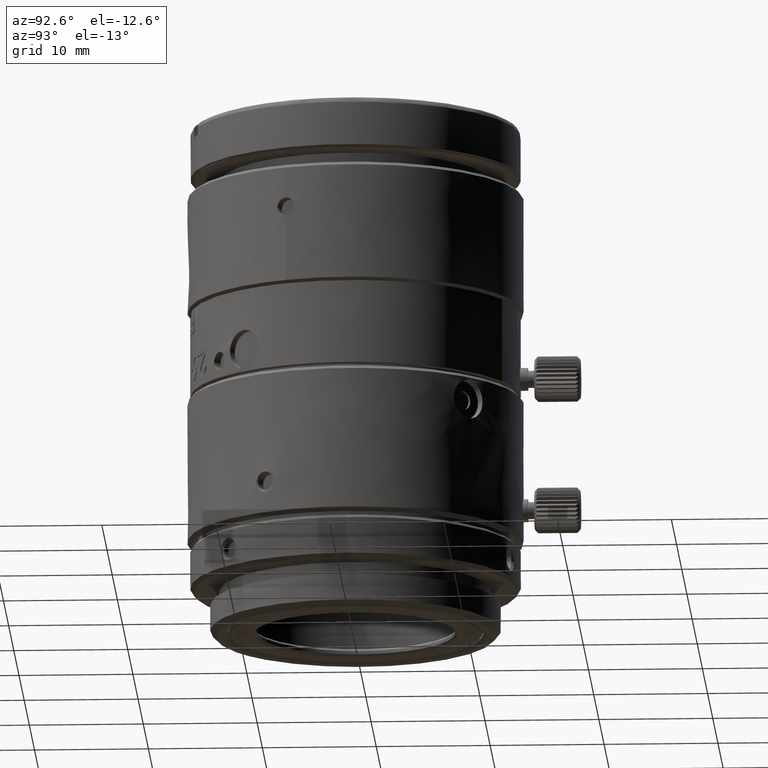
[diagram: clean part render]
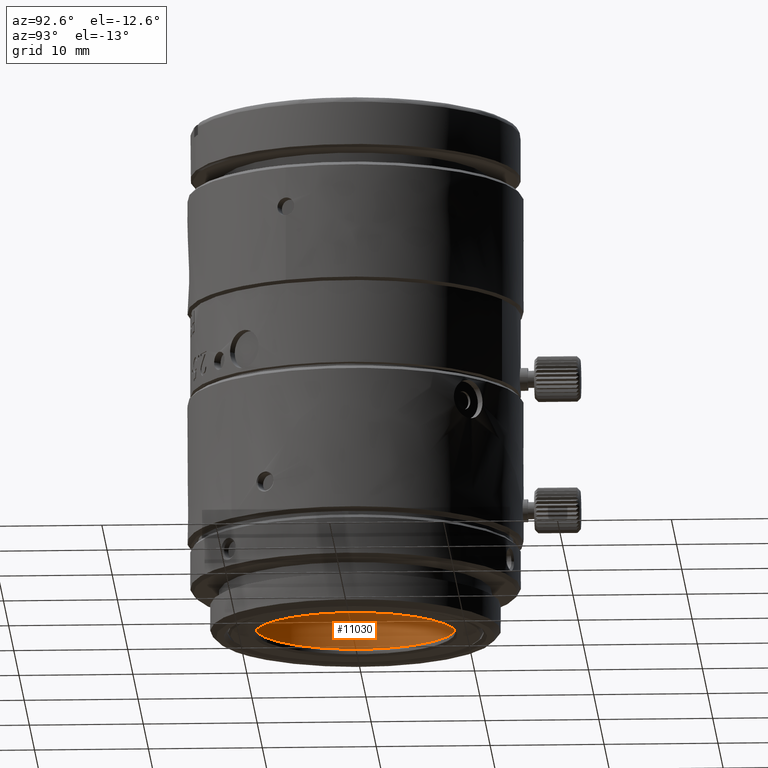
[diagram: same view with one face highlighted and labeled with its STEP entity id]
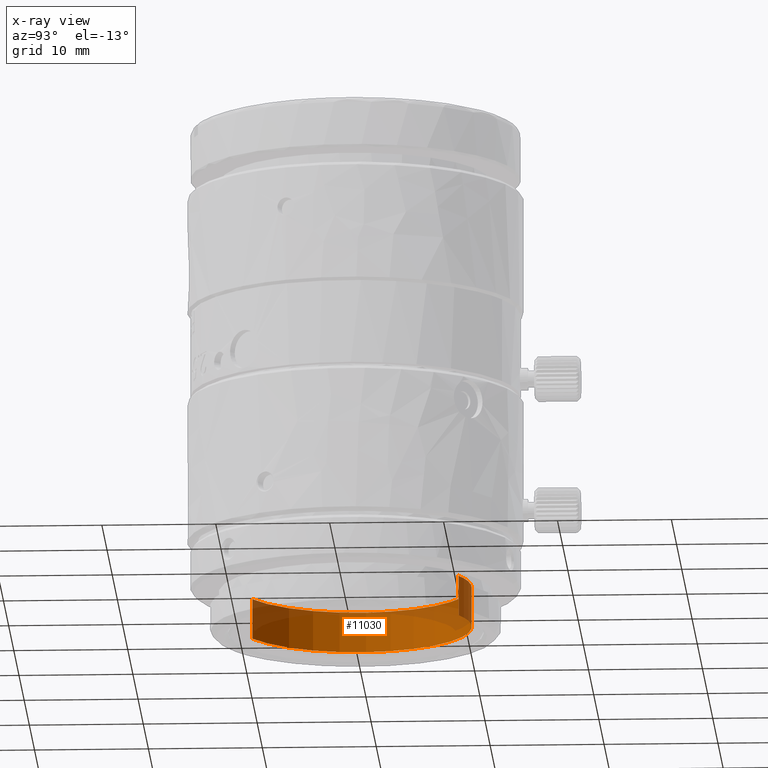
[diagram: x-ray of the same camera — body ghosted, the highlighted face saturated]
A machine part, auxiliary view. The second image highlights one B-rep face of the part: STEP entity #11030.
The next image is the same camera in x-ray: the body ghosted, the highlighted face saturated — about 21% of this face is hidden behind the body in this view.
In plain terms, the highlighted face is a freeform B-spline surface patch.
Its self-contained STEP definition (entity closure, byte-faithful):
#1288 = CARTESIAN_POINT ( 'NONE',  ( 4.310706266680185195, 9.244339427605659409, -19.98400299200000063 ) ) ;
#1475 = CARTESIAN_POINT ( 'NONE',  ( 4.310706268060534363, 9.244339428722421204, -16.43400299219314675 ) ) ;
#1855 =( BOUNDED_CURVE ( )  B_SPLINE_CURVE ( 3, ( #5184, #23028, #26328, #37387 ),
 .UNSPECIFIED., .F., .T. ) 
 B_SPLINE_CURVE_WITH_KNOTS ( ( 4, 4 ),
 ( -4.276056667373720366, -1.134464013783928138 ),
 .UNSPECIFIED. ) 
 CURVE ( )  GEOMETRIC_REPRESENTATION_ITEM ( )  RATIONAL_B_SPLINE_CURVE ( ( 1.000000000000000000, 0.3333333335299311084, 0.3333333335299311084, 1.000000000000000000 ) ) 
 REPRESENTATION_ITEM ( '' )  );
#4773 = CARTESIAN_POINT ( 'NONE',  ( -4.310706269761629628, -9.244339426168760809, -19.98400299200000063 ) ) ;
#5044 = CARTESIAN_POINT ( 'NONE',  ( 4.310706266680185195, 9.244339427605659409, -19.98400299200000063 ) ) ;
#5184 = CARTESIAN_POINT ( 'NONE',  ( -4.310706269761629628, -9.244339426168760809, -19.98400299200000063 ) ) ;
#6853 = CARTESIAN_POINT ( 'NONE',  ( 4.310706266207907866, 9.244339429768283267, -16.43400299199999992 ) ) ;
#9182 =( BOUNDED_SURFACE ( )  B_SPLINE_SURFACE ( 1, 3, ( 
 ( #10347, #30879, #21596, #15409 ),
 ( #6853, #27230, #21410, #33424 ) ),
 .UNSPECIFIED., .F., .F., .T. ) 
 B_SPLINE_SURFACE_WITH_KNOTS ( ( 2, 2 ),
 ( 4, 4 ),
 ( 0.0000000000000000000, 1.000000000000000000 ),
 ( 0.0000000000000000000, 1.000000000000000000 ),
 .UNSPECIFIED. ) 
 GEOMETRIC_REPRESENTATION_ITEM ( )  RATIONAL_B_SPLINE_SURFACE ( (
 ( 1.000000000000000000, 0.3333333334700690487, 0.3333333334700690487, 1.000000000000000000),
 ( 1.000000000000000000, 0.3333333334700690487, 0.3333333334700690487, 1.000000000000000000) ) ) 
 REPRESENTATION_ITEM ( '' )  SURFACE ( )  );
#10347 = CARTESIAN_POINT ( 'NONE',  ( 4.310706266207907866, 9.244339429768283267, -19.98400299200000063 ) ) ;
#11030 = ADVANCED_FACE ( 'NONE', ( #15600 ), #9182, .T. ) ;
#14312 = EDGE_CURVE ( 'NONE', #23100, #27151, #31867, .T. ) ;
#15348 = CARTESIAN_POINT ( 'NONE',  ( -4.310706270371619908, -9.244339427644741036, -16.43400299219314675 ) ) ;
#15409 = CARTESIAN_POINT ( 'NONE',  ( -4.310706270000001616, -9.244339427999999970, -19.98400299200000063 ) ) ;
#15600 = FACE_OUTER_BOUND ( 'NONE', #24845, .T. ) ;
#17624 = VERTEX_POINT ( 'NONE', #5044 ) ;
#18013 = CARTESIAN_POINT ( 'NONE',  ( -4.310706269761629628, -9.244339426168760809, -19.98400299200000063 ) ) ;
#18459 = VERTEX_POINT ( 'NONE', #21658 ) ;
#20972 = CARTESIAN_POINT ( 'NONE',  ( -14.17797258543994587, 17.86575196726479930, -16.43400299238632911 ) ) ;
#21410 = CARTESIAN_POINT ( 'NONE',  ( -22.79938511841581317, -0.6229268915365626658, -16.43400299199999992 ) ) ;
#21596 = CARTESIAN_POINT ( 'NONE',  ( -22.79938511841581317, -0.6229268915365626658, -19.98400299200000063 ) ) ;
#21646 = EDGE_CURVE ( 'NONE', #27151, #17624, #1855, .T. ) ;
#21658 = CARTESIAN_POINT ( 'NONE',  ( 4.310706268060534363, 9.244339428722421204, -16.43400299219314675 ) ) ;
#22275 = ORIENTED_EDGE ( 'NONE', *, *, #14312, .T. ) ;
#22839 = ORIENTED_EDGE ( 'NONE', *, *, #25324, .T. ) ;
#23028 = CARTESIAN_POINT ( 'NONE',  ( -22.79938511520736810, -0.6229268889903928352, -19.98400299200000063 ) ) ;
#23065 = B_SPLINE_CURVE_WITH_KNOTS ( 'NONE', 1,
 ( #1288, #1475 ),
 .UNSPECIFIED., .F., .F.,
 ( 2, 2 ),
 ( -1.000000000000000000, 0.0000000000000000000 ),
 .UNSPECIFIED. ) ;
#23100 = VERTEX_POINT ( 'NONE', #32483 ) ;
#23885 = CARTESIAN_POINT ( 'NONE',  ( -22.79938512502818782, -0.6229268880883015447, -16.43400299238632911 ) ) ;
#24690 = ORIENTED_EDGE ( 'NONE', *, *, #32126, .F. ) ;
#24845 = EDGE_LOOP ( 'NONE', ( #24690, #22275, #29158, #22839 ) ) ;
#25324 = EDGE_CURVE ( 'NONE', #17624, #18459, #23065, .T. ) ;
#25531 = CARTESIAN_POINT ( 'NONE',  ( -4.310706270371619908, -9.244339427644741036, -16.43400299219314675 ) ) ;
#25998 =( BOUNDED_CURVE ( )  B_SPLINE_CURVE ( 3, ( #15348, #23885, #20972, #35714 ),
 .UNSPECIFIED., .F., .T. ) 
 B_SPLINE_CURVE_WITH_KNOTS ( ( 4, 4 ),
 ( 0.0000000000000000000, 3.141592653589795336 ),
 .UNSPECIFIED. ) 
 CURVE ( )  GEOMETRIC_REPRESENTATION_ITEM ( )  RATIONAL_B_SPLINE_CURVE ( ( 0.9959416516879560088, 0.3319805505626520770, 0.3319805505626520770, 0.9959416516879560088 ) ) 
 REPRESENTATION_ITEM ( '' )  );
#26328 = CARTESIAN_POINT ( 'NONE',  ( -14.17797258242415914, 17.86575195709924557, -19.98400299200000063 ) ) ;
#27151 = VERTEX_POINT ( 'NONE', #18013 ) ;
#27230 = CARTESIAN_POINT ( 'NONE',  ( -14.17797258574446673, 17.86575195864753596, -16.43400299199999992 ) ) ;
#29158 = ORIENTED_EDGE ( 'NONE', *, *, #21646, .T. ) ;
#30879 = CARTESIAN_POINT ( 'NONE',  ( -14.17797258574446673, 17.86575195864753596, -19.98400299200000063 ) ) ;
#31867 = B_SPLINE_CURVE_WITH_KNOTS ( 'NONE', 1,
 ( #25531, #4773 ),
 .UNSPECIFIED., .F., .F.,
 ( 2, 2 ),
 ( -1.000000000000000000, 0.0000000000000000000 ),
 .UNSPECIFIED. ) ;
#32126 = EDGE_CURVE ( 'NONE', #23100, #18459, #25998, .T. ) ;
#32483 = CARTESIAN_POINT ( 'NONE',  ( -4.310706270371619908, -9.244339427644741036, -16.43400299219314675 ) ) ;
#33424 = CARTESIAN_POINT ( 'NONE',  ( -4.310706270000001616, -9.244339427999999970, -16.43400299199999992 ) ) ;
#35714 = CARTESIAN_POINT ( 'NONE',  ( 4.310706268060534363, 9.244339428722421204, -16.43400299219314675 ) ) ;
#37387 = CARTESIAN_POINT ( 'NONE',  ( 4.310706266680185195, 9.244339427605659409, -19.98400299200000063 ) ) ;